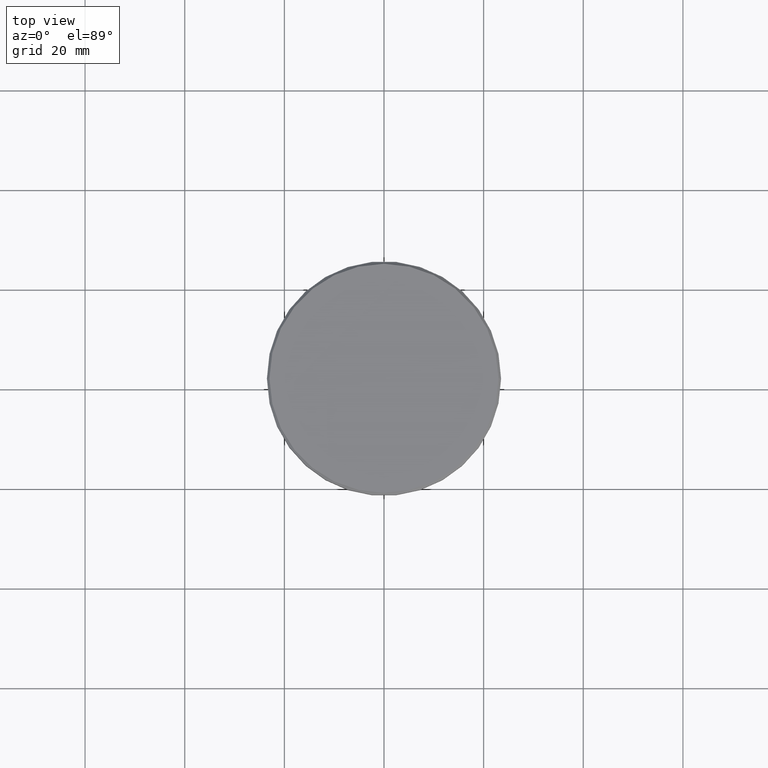
[diagram: clean part render]
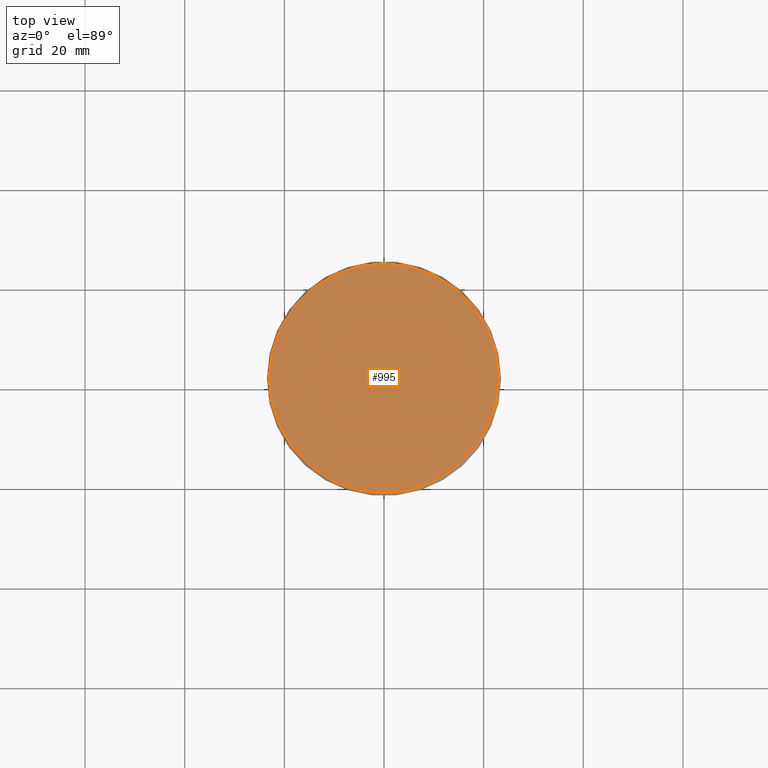
[diagram: same view with one face highlighted and labeled with its STEP entity id]
A machine part, top view. The second image highlights one B-rep face of the part: STEP entity #995.
In plain terms, the highlighted planar face has unit normal (0, -0, 1).
Its self-contained STEP definition (entity closure, byte-faithful):
#189 = CIRCLE ( 'NONE', #847, 23.00000000000001066 ) ;
#235 = DIRECTION ( 'NONE',  ( -0.000000000000000000, -0.000000000000000000, 1.000000000000000000 ) ) ;
#336 = AXIS2_PLACEMENT_3D ( 'NONE', #858, #235, #966 ) ;
#347 = DIRECTION ( 'NONE',  ( -0.000000000000000000, -0.000000000000000000, 1.000000000000000000 ) ) ;
#370 = CARTESIAN_POINT ( 'NONE',  ( 0.000000000000000000, 0.000000000000000000, 0.000000000000000000 ) ) ;
#384 = EDGE_CURVE ( 'NONE', #601, #725, #189, .T. ) ;
#542 = DIRECTION ( 'NONE',  ( 1.000000000000000000, 0.000000000000000000, 0.000000000000000000 ) ) ;
#601 = VERTEX_POINT ( 'NONE', #1049 ) ;
#645 = DIRECTION ( 'NONE',  ( 1.000000000000000000, 0.000000000000000000, 0.000000000000000000 ) ) ;
#647 = EDGE_CURVE ( 'NONE', #725, #601, #865, .T. ) ;
#725 = VERTEX_POINT ( 'NONE', #969 ) ;
#735 = DIRECTION ( 'NONE',  ( 0.000000000000000000, -0.000000000000000000, 1.000000000000000000 ) ) ;
#736 = EDGE_LOOP ( 'NONE', ( #1094, #998 ) ) ;
#821 = PLANE ( 'NONE',  #1153 ) ;
#847 = AXIS2_PLACEMENT_3D ( 'NONE', #1073, #347, #542 ) ;
#858 = CARTESIAN_POINT ( 'NONE',  ( 0.000000000000000000, 0.000000000000000000, 0.000000000000000000 ) ) ;
#865 = CIRCLE ( 'NONE', #336, 23.00000000000001066 ) ;
#916 = FACE_OUTER_BOUND ( 'NONE', #736, .T. ) ;
#966 = DIRECTION ( 'NONE',  ( 1.000000000000000000, 0.000000000000000000, 0.000000000000000000 ) ) ;
#969 = CARTESIAN_POINT ( 'NONE',  ( 23.00000000000001066, 2.847303808017596928E-15, 0.000000000000000000 ) ) ;
#995 = ADVANCED_FACE ( 'NONE', ( #916 ), #821, .T. ) ;
#998 = ORIENTED_EDGE ( 'NONE', *, *, #647, .T. ) ;
#1049 = CARTESIAN_POINT ( 'NONE',  ( -23.00000000000001066, 0.000000000000000000, 0.000000000000000000 ) ) ;
#1073 = CARTESIAN_POINT ( 'NONE',  ( 0.000000000000000000, 0.000000000000000000, 0.000000000000000000 ) ) ;
#1094 = ORIENTED_EDGE ( 'NONE', *, *, #384, .T. ) ;
#1153 = AXIS2_PLACEMENT_3D ( 'NONE', #370, #735, #645 ) ;